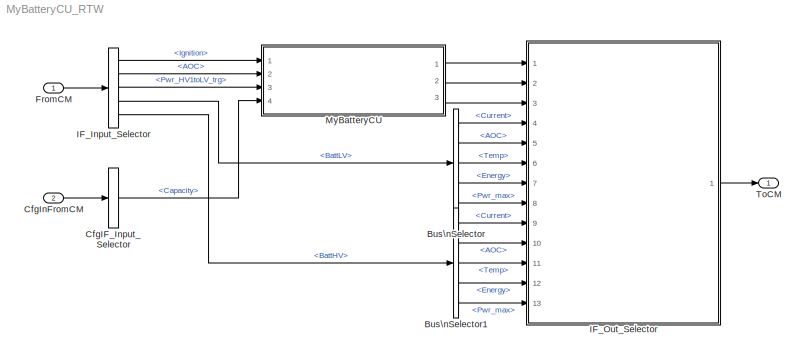
MODEL MyBatteryCU_RTW
KIND model
CONFIG InitFcn = vehicle = 'Car'; if ~length(which('cmcmd')), cmenv; end\nMyBatteryCU_RTW_bus
CONFIG PreLoadFcn = vehicle = 'Car'; if ~length(which('cmcmd')), cmenv; end\nMyBatteryCU_RTW_bus
BLOCK [BusSelector] Bus\nSelector
  OutputSignals = Current,AOC,Temp,Energy,Pwr_max
  Ports = [1, 5]
  SID = 30
BLOCK [BusSelector] Bus\nSelector1
  OutputSignals = Current,AOC,Temp,Energy,Pwr_max
  Ports = [1, 5]
  SID = 31
BLOCK [BusSelector] CfgIF_Input_Selector
  OutputSignals = BattLV.Capacity
  Ports = [1, 1]
  SID = 32
BLOCK [Inport] CfgInFromCM
  IconDisplay = Port number
  OutDataTypeStr = Bus: cmPTBatteryCUCfgIn
  Port = 2
  SID = 8
BLOCK [Inport] FromCM
  IconDisplay = Port number
  OutDataTypeStr = Bus: cmPTBatteryCUIn
  SID = 1
BLOCK [BusSelector] IF_Input_Selector
  OutputSignals = Ignition,BattLV.AOC,Pwr_HV1toLV_trg,BattLV,BattHV
  Ports = [1, 5]
  SID = 33
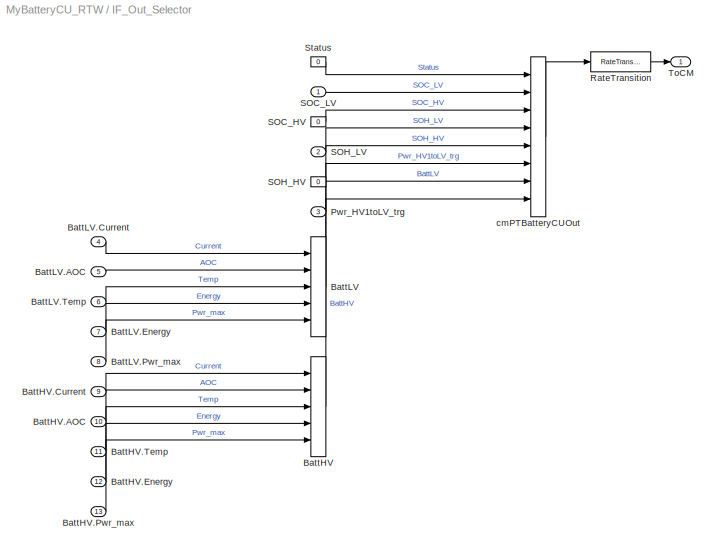
BLOCK [SubSystem] IF_Out_Selector
  OpenFcn = cmSignalSelect('SignalSelection_CB',gcb)
  Ports = [13, 1]
  RequestExecContextInheritance = off
  SID = 5
  UserData = DataTag0
  UserDataPersistent = on
  Variant = off
BLOCK [BusCreator] IF_Out_Selector/BattHV
  InheritFromInputs = on
  Inputs = 5
  Ports = [5, 1]
  SID = 24
BLOCK [Inport] IF_Out_Selector/BattHV.AOC
  IconDisplay = Port number
  Port = 10
  SID = 71
BLOCK [Inport] IF_Out_Selector/BattHV.Current
  IconDisplay = Port number
  Port = 9
  SID = 70
BLOCK [Inport] IF_Out_Selector/BattHV.Energy
  IconDisplay = Port number
  Port = 12
  SID = 73
BLOCK [Inport] IF_Out_Selector/BattHV.Pwr_max
  IconDisplay = Port number
  Port = 13
  SID = 74
BLOCK [Inport] IF_Out_Selector/BattHV.Temp
  IconDisplay = Port number
  Port = 11
  SID = 72
BLOCK [BusCreator] IF_Out_Selector/BattLV
  InheritFromInputs = on
  Inputs = 5
  Ports = [5, 1]
  SID = 18
BLOCK [Inport] IF_Out_Selector/BattLV.AOC
  IconDisplay = Port number
  Port = 5
  SID = 66
BLOCK [Inport] IF_Out_Selector/BattLV.Current
  IconDisplay = Port number
  Port = 4
  SID = 65
BLOCK [Inport] IF_Out_Selector/BattLV.Energy
  IconDisplay = Port number
  Port = 7
  SID = 68
BLOCK [Inport] IF_Out_Selector/BattLV.Pwr_max
  IconDisplay = Port number
  Port = 8
  SID = 69
BLOCK [Inport] IF_Out_Selector/BattLV.Temp
  IconDisplay = Port number
  Port = 6
  SID = 67
BLOCK [Inport] IF_Out_Selector/Pwr_HV1toLV_trg
  IconDisplay = Port number
  Port = 3
  SID = 64
BLOCK [RateTransition] IF_Out_Selector/RateTransition
  OutPortSampleTime = str2num(get_param(bdroot,'FixedStep'))
  SID = 6
BLOCK [Constant] IF_Out_Selector/SOC_HV
  SID = 14
  Value = 0
BLOCK [Inport] IF_Out_Selector/SOC_LV
  IconDisplay = Port number
  SID = 62
BLOCK [Constant] IF_Out_Selector/SOH_HV
  SID = 16
  Value = 0
BLOCK [Inport] IF_Out_Selector/SOH_LV
  IconDisplay = Port number
  Port = 2
  SID = 63
BLOCK [Constant] IF_Out_Selector/Status
  SID = 12
  Value = 0
BLOCK [Outport] IF_Out_Selector/ToCM
  IconDisplay = Port number
  SID = 7
BLOCK [BusCreator] IF_Out_Selector/cmPTBatteryCUOut
  InheritFromInputs = on
  Inputs = 8
  Ports = [8, 1]
  SID = 11
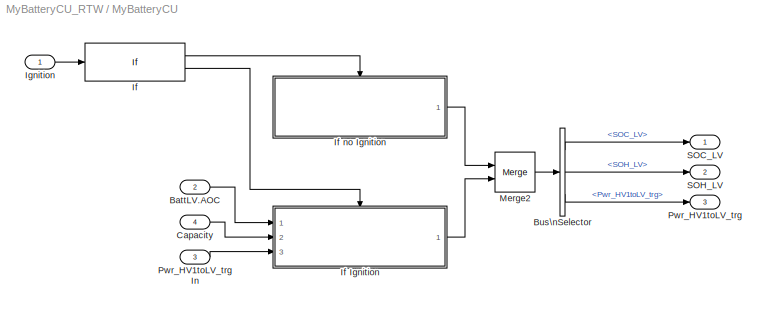
BLOCK [SubSystem] MyBatteryCU
  Ports = [4, 3]
  RequestExecContextInheritance = off
  SID = 34
  Variant = off
BLOCK [Inport] MyBatteryCU/BattLV.AOC
  IconDisplay = Port number
  Port = 2
  SID = 36
BLOCK [BusSelector] MyBatteryCU/Bus\nSelector
  OutputSignals = SOC_LV,SOH_LV,Pwr_HV1toLV_trg
  Ports = [1, 3]
  SID = 39
BLOCK [Inport] MyBatteryCU/Capacity
  IconDisplay = Port number
  Port = 4
  SID = 38
BLOCK [If] MyBatteryCU/If
  IfExpression = ~u1
  Ports = [1, 2]
  SID = 40
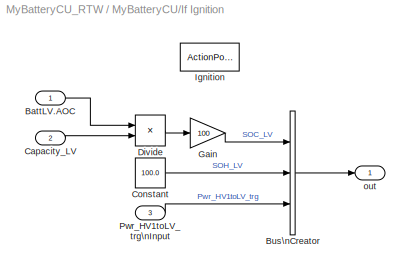
BLOCK [SubSystem] MyBatteryCU/If Ignition
  Ports = [3, 1, 0, 0, 0, 0, 0, 1]
  RequestExecContextInheritance = off
  SID = 41
  TreatAsAtomicUnit = on
  Variant = off
BLOCK [Inport] MyBatteryCU/If Ignition/BattLV.AOC
  IconDisplay = Port number
  SID = 42
BLOCK [BusCreator] MyBatteryCU/If Ignition/Bus\nCreator
  DisplayOption = bar
  InheritFromInputs = on
  Inputs = 3
  Ports = [3, 1]
  SID = 46
BLOCK [Inport] MyBatteryCU/If Ignition/Capacity_LV
  IconDisplay = Port number
  Port = 2
  SID = 43
BLOCK [Constant] MyBatteryCU/If Ignition/Constant
  SID = 47
  Value = 100.0
BLOCK [Product] MyBatteryCU/If Ignition/Divide
  InputSameDT = off
  Inputs = */
  OutDataTypeStr = Inherit: Inherit via internal rule
  Ports = [2, 1]
  RndMeth = Floor
  SID = 48
  SaturateOnIntegerOverflow = off
BLOCK [Gain] MyBatteryCU/If Ignition/Gain
  Gain = 100
  OutDataTypeStr = Inherit: Inherit via internal rule
  ParamDataTypeStr = Inherit: Inherit via internal rule
  SID = 49
  SaturateOnIntegerOverflow = off
BLOCK [ActionPort] MyBatteryCU/If Ignition/Ignition
  ActionType = else
  SID = 45
BLOCK [Inport] MyBatteryCU/If Ignition/Pwr_HV1toLV_trg\nInput
  IconDisplay = Port number
  Port = 3
  SID = 44
BLOCK [Outport] MyBatteryCU/If Ignition/out
  IconDisplay = Port number
  InitialOutput = [,100,]
  SID = 50
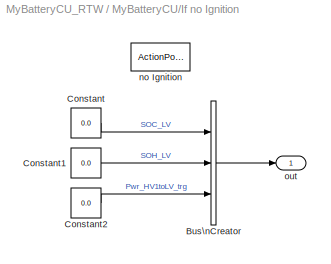
BLOCK [SubSystem] MyBatteryCU/If no Ignition
  Ports = [0, 1, 0, 0, 0, 0, 0, 1]
  RequestExecContextInheritance = off
  SID = 51
  TreatAsAtomicUnit = on
  Variant = off
BLOCK [BusCreator] MyBatteryCU/If no Ignition/Bus\nCreator
  DisplayOption = bar
  InheritFromInputs = on
  Inputs = 3
  Ports = [3, 1]
  SID = 53
BLOCK [Constant] MyBatteryCU/If no Ignition/Constant
  SID = 54
  Value = 0.0
BLOCK [Constant] MyBatteryCU/If no Ignition/Constant1
  SID = 55
  Value = 0.0
BLOCK [Constant] MyBatteryCU/If no Ignition/Constant2
  SID = 56
  Value = 0.0
BLOCK [ActionPort] MyBatteryCU/If no Ignition/no Ignition
  ActionType = then
  SID = 52
BLOCK [Outport] MyBatteryCU/If no Ignition/out
  IconDisplay = Port number
  InitialOutput = 0
  SID = 57
BLOCK [Inport] MyBatteryCU/Ignition
  IconDisplay = Port number
  SID = 35
BLOCK [Merge] MyBatteryCU/Merge2
  Ports = [2, 1]
  SID = 58
BLOCK [Outport] MyBatteryCU/Pwr_HV1toLV_trg
  IconDisplay = Port number
  Port = 3
  SID = 61
BLOCK [Inport] MyBatteryCU/Pwr_HV1toLV_trg In
  IconDisplay = Port number
  Port = 3
  SID = 37
BLOCK [Outport] MyBatteryCU/SOC_LV
  IconDisplay = Port number
  SID = 59
BLOCK [Outport] MyBatteryCU/SOH_LV
  IconDisplay = Port number
  Port = 2
  SID = 60
BLOCK [Outport] ToCM
  IconDisplay = Port number
  OutDataTypeStr = Bus: cmPTBatteryCUOut
  SID = 4
LINE Bus\nSelector1:1 -> IF_Out_Selector:9
LINE Bus\nSelector1:2 -> IF_Out_Selector:10
LINE Bus\nSelector1:3 -> IF_Out_Selector:11
LINE Bus\nSelector1:4 -> IF_Out_Selector:12
LINE Bus\nSelector1:5 -> IF_Out_Selector:13
LINE Bus\nSelector:1 -> IF_Out_Selector:4
LINE Bus\nSelector:2 -> IF_Out_Selector:5
LINE Bus\nSelector:3 -> IF_Out_Selector:6
LINE Bus\nSelector:4 -> IF_Out_Selector:7
LINE Bus\nSelector:5 -> IF_Out_Selector:8
LINE CfgIF_Input_Selector:1 -> MyBatteryCU:4
LINE CfgInFromCM:1 -> CfgIF_Input_Selector:1
LINE FromCM:1 -> IF_Input_Selector:1
LINE IF_Input_Selector:1 -> MyBatteryCU:1
LINE IF_Input_Selector:2 -> MyBatteryCU:2
LINE IF_Input_Selector:3 -> MyBatteryCU:3
LINE IF_Input_Selector:4 -> Bus\nSelector:1
LINE IF_Input_Selector:5 -> Bus\nSelector1:1
LINE IF_Out_Selector/BattHV.AOC:1 -> IF_Out_Selector/BattHV:2
LINE IF_Out_Selector/BattHV.Current:1 -> IF_Out_Selector/BattHV:1
LINE IF_Out_Selector/BattHV.Energy:1 -> IF_Out_Selector/BattHV:4
LINE IF_Out_Selector/BattHV.Pwr_max:1 -> IF_Out_Selector/BattHV:5
LINE IF_Out_Selector/BattHV.Temp:1 -> IF_Out_Selector/BattHV:3
LINE IF_Out_Selector/BattHV:1 -> IF_Out_Selector/cmPTBatteryCUOut:8
LINE IF_Out_Selector/BattLV.AOC:1 -> IF_Out_Selector/BattLV:2
LINE IF_Out_Selector/BattLV.Current:1 -> IF_Out_Selector/BattLV:1
LINE IF_Out_Selector/BattLV.Energy:1 -> IF_Out_Selector/BattLV:4
LINE IF_Out_Selector/BattLV.Pwr_max:1 -> IF_Out_Selector/BattLV:5
LINE IF_Out_Selector/BattLV.Temp:1 -> IF_Out_Selector/BattLV:3
LINE IF_Out_Selector/BattLV:1 -> IF_Out_Selector/cmPTBatteryCUOut:7
LINE IF_Out_Selector/Pwr_HV1toLV_trg:1 -> IF_Out_Selector/cmPTBatteryCUOut:6
LINE IF_Out_Selector/RateTransition:1 -> IF_Out_Selector/ToCM:1
LINE IF_Out_Selector/SOC_HV:1 -> IF_Out_Selector/cmPTBatteryCUOut:3
LINE IF_Out_Selector/SOC_LV:1 -> IF_Out_Selector/cmPTBatteryCUOut:2
LINE IF_Out_Selector/SOH_HV:1 -> IF_Out_Selector/cmPTBatteryCUOut:5
LINE IF_Out_Selector/SOH_LV:1 -> IF_Out_Selector/cmPTBatteryCUOut:4
LINE IF_Out_Selector/Status:1 -> IF_Out_Selector/cmPTBatteryCUOut:1
LINE IF_Out_Selector/cmPTBatteryCUOut:1 -> IF_Out_Selector/RateTransition:1
LINE IF_Out_Selector:1 -> ToCM:1
LINE MyBatteryCU/BattLV.AOC:1 -> MyBatteryCU/If Ignition:1
LINE MyBatteryCU/Bus\nSelector:1 -> MyBatteryCU/SOC_LV:1
LINE MyBatteryCU/Bus\nSelector:2 -> MyBatteryCU/SOH_LV:1
LINE MyBatteryCU/Bus\nSelector:3 -> MyBatteryCU/Pwr_HV1toLV_trg:1
LINE MyBatteryCU/Capacity:1 -> MyBatteryCU/If Ignition:2
LINE MyBatteryCU/If Ignition/BattLV.AOC:1 -> MyBatteryCU/If Ignition/Divide:1
LINE MyBatteryCU/If Ignition/Bus\nCreator:1 -> MyBatteryCU/If Ignition/out:1
LINE MyBatteryCU/If Ignition/Capacity_LV:1 -> MyBatteryCU/If Ignition/Divide:2
LINE MyBatteryCU/If Ignition/Constant:1 -> MyBatteryCU/If Ignition/Bus\nCreator:2
LINE MyBatteryCU/If Ignition/Divide:1 -> MyBatteryCU/If Ignition/Gain:1
LINE MyBatteryCU/If Ignition/Gain:1 -> MyBatteryCU/If Ignition/Bus\nCreator:1
LINE MyBatteryCU/If Ignition/Pwr_HV1toLV_trg\nInput:1 -> MyBatteryCU/If Ignition/Bus\nCreator:3
LINE MyBatteryCU/If Ignition:1 -> MyBatteryCU/Merge2:2
LINE MyBatteryCU/If no Ignition/Bus\nCreator:1 -> MyBatteryCU/If no Ignition/out:1
LINE MyBatteryCU/If no Ignition/Constant1:1 -> MyBatteryCU/If no Ignition/Bus\nCreator:2
LINE MyBatteryCU/If no Ignition/Constant2:1 -> MyBatteryCU/If no Ignition/Bus\nCreator:3
LINE MyBatteryCU/If no Ignition/Constant:1 -> MyBatteryCU/If no Ignition/Bus\nCreator:1
LINE MyBatteryCU/If no Ignition:1 -> MyBatteryCU/Merge2:1
LINE MyBatteryCU/If:1 -> MyBatteryCU/If no Ignition:ifaction
LINE MyBatteryCU/If:2 -> MyBatteryCU/If Ignition:ifaction
LINE MyBatteryCU/Ignition:1 -> MyBatteryCU/If:1
LINE MyBatteryCU/Merge2:1 -> MyBatteryCU/Bus\nSelector:1
LINE MyBatteryCU/Pwr_HV1toLV_trg In:1 -> MyBatteryCU/If Ignition:3
LINE MyBatteryCU:1 -> IF_Out_Selector:1
LINE MyBatteryCU:2 -> IF_Out_Selector:2
LINE MyBatteryCU:3 -> IF_Out_Selector:3
